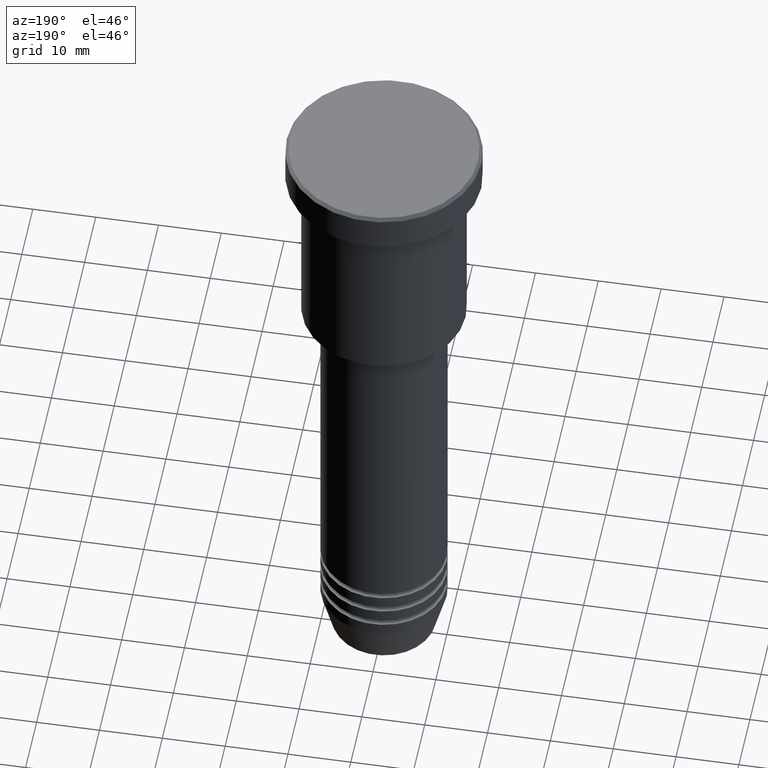
[diagram: clean part render]
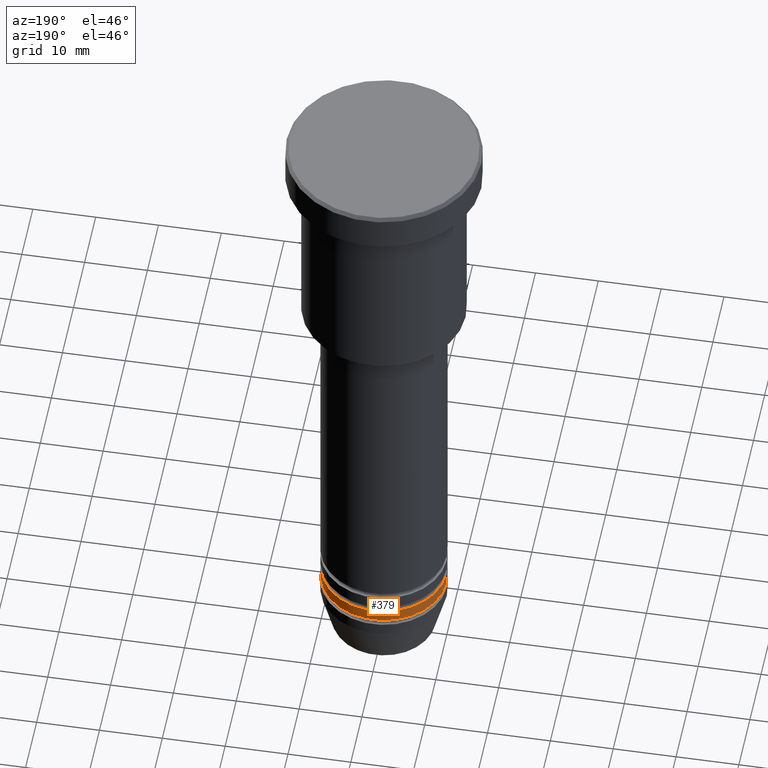
[diagram: same view with one face highlighted and labeled with its STEP entity id]
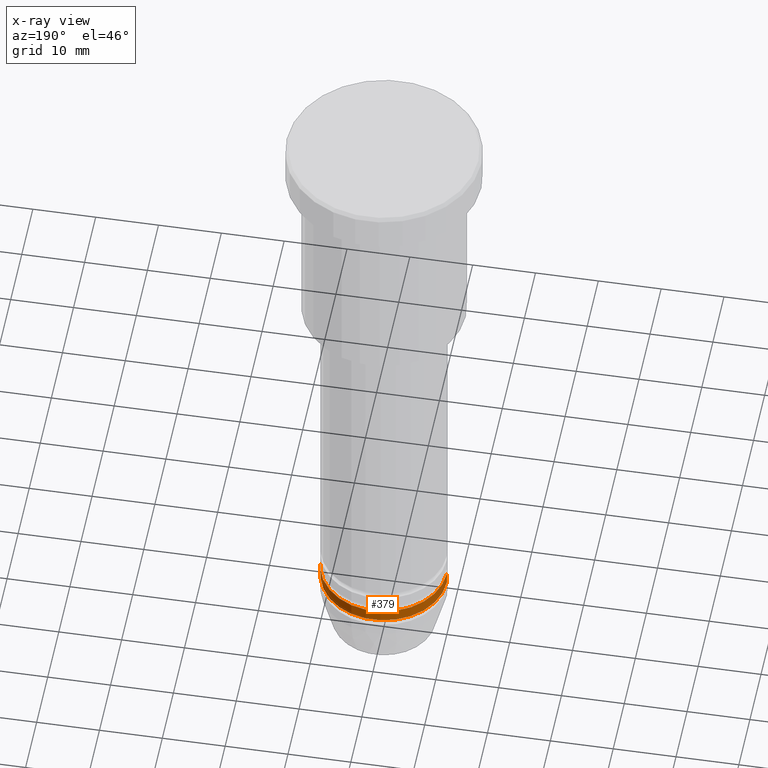
[diagram: x-ray of the same camera — body ghosted, the highlighted face saturated]
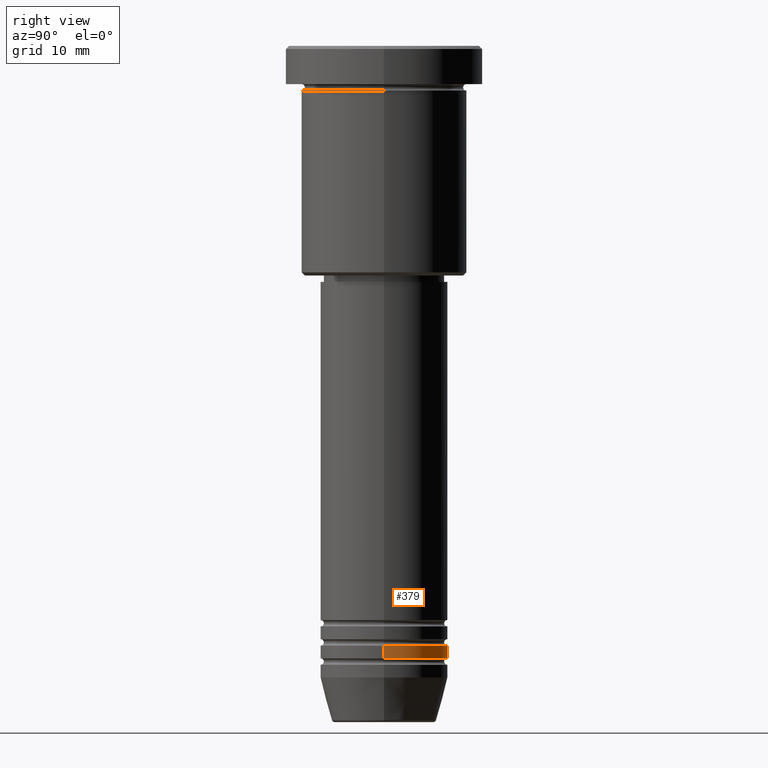
[diagram: same view with one face highlighted and labeled with its STEP entity id]
A machine part, auxiliary view. The second image highlights one B-rep face of the part: STEP entity #379.
The next image is the same camera in x-ray: the body ghosted, the highlighted face saturated — about 0% of this face is hidden behind the body in this view.
A second angle (right view) of the same face is appended — the face is thin or edge-on in the first view.
In plain terms, the highlighted cylindrical surface (partial cylindrical patch) has radius 10 mm, axis along (-0, -0, 1).
Its self-contained STEP definition (entity closure, byte-faithful):
#95 = FACE_OUTER_BOUND ( 'NONE', #617, .T. ) ;
#182 = CARTESIAN_POINT ( 'NONE',  ( 0.000000000000000000, 0.000000000000000000, -93.99999999999998579 ) ) ;
#185 = ORIENTED_EDGE ( 'NONE', *, *, #520, .T. ) ;
#197 = VECTOR ( 'NONE', #485, 1000.000000000000000 ) ;
#201 = DIRECTION ( 'NONE',  ( -0.000000000000000000, -0.000000000000000000, 1.000000000000000000 ) ) ;
#276 = DIRECTION ( 'NONE',  ( 1.000000000000000000, 0.000000000000000000, 0.000000000000000000 ) ) ;
#329 = CARTESIAN_POINT ( 'NONE',  ( 10.00000000000000000, 0.000000000000000000, -95.99999999999997158 ) ) ;
#355 = DIRECTION ( 'NONE',  ( -0.000000000000000000, -0.000000000000000000, 1.000000000000000000 ) ) ;
#377 = VECTOR ( 'NONE', #854, 1000.000000000000000 ) ;
#379 = ADVANCED_FACE ( 'NONE', ( #95 ), #657, .T. ) ;
#402 = CARTESIAN_POINT ( 'NONE',  ( 10.00000000000000000, 0.000000000000000000, -93.99999999999998579 ) ) ;
#460 = CIRCLE ( 'NONE', #1098, 10.00000000000000000 ) ;
#477 = LINE ( 'NONE', #486, #377 ) ;
#485 = DIRECTION ( 'NONE',  ( -0.000000000000000000, -0.000000000000000000, 1.000000000000000000 ) ) ;
#486 = CARTESIAN_POINT ( 'NONE',  ( 10.00000000000000000, 0.000000000000000000, 0.000000000000000000 ) ) ;
#520 = EDGE_CURVE ( 'NONE', #1160, #722, #460, .T. ) ;
#540 = CARTESIAN_POINT ( 'NONE',  ( 0.000000000000000000, 0.000000000000000000, 0.000000000000000000 ) ) ;
#566 = DIRECTION ( 'NONE',  ( 1.000000000000000000, 0.000000000000000000, 0.000000000000000000 ) ) ;
#568 = EDGE_CURVE ( 'NONE', #1160, #1151, #477, .T. ) ;
#595 = CARTESIAN_POINT ( 'NONE',  ( -10.00000000000000000, 1.224646799147353256E-15, -93.99999999999998579 ) ) ;
#617 = EDGE_LOOP ( 'NONE', ( #185, #641, #1002, #822 ) ) ;
#619 = VERTEX_POINT ( 'NONE', #595 ) ;
#641 = ORIENTED_EDGE ( 'NONE', *, *, #912, .T. ) ;
#657 = CYLINDRICAL_SURFACE ( 'NONE', #691, 10.00000000000000000 ) ;
#691 = AXIS2_PLACEMENT_3D ( 'NONE', #540, #1078, #276 ) ;
#722 = VERTEX_POINT ( 'NONE', #798 ) ;
#734 = DIRECTION ( 'NONE',  ( 1.000000000000000000, 0.000000000000000000, 0.000000000000000000 ) ) ;
#768 = EDGE_CURVE ( 'NONE', #1151, #619, #1177, .T. ) ;
#793 = AXIS2_PLACEMENT_3D ( 'NONE', #182, #355, #734 ) ;
#798 = CARTESIAN_POINT ( 'NONE',  ( -10.00000000000000000, 1.224646799147353256E-15, -95.99999999999997158 ) ) ;
#822 = ORIENTED_EDGE ( 'NONE', *, *, #568, .F. ) ;
#854 = DIRECTION ( 'NONE',  ( -0.000000000000000000, -0.000000000000000000, 1.000000000000000000 ) ) ;
#869 = CARTESIAN_POINT ( 'NONE',  ( 0.000000000000000000, 0.000000000000000000, -95.99999999999997158 ) ) ;
#908 = LINE ( 'NONE', #945, #197 ) ;
#912 = EDGE_CURVE ( 'NONE', #722, #619, #908, .T. ) ;
#945 = CARTESIAN_POINT ( 'NONE',  ( -10.00000000000000000, 1.224646799147353256E-15, 0.000000000000000000 ) ) ;
#1002 = ORIENTED_EDGE ( 'NONE', *, *, #768, .F. ) ;
#1078 = DIRECTION ( 'NONE',  ( -0.000000000000000000, -0.000000000000000000, 1.000000000000000000 ) ) ;
#1098 = AXIS2_PLACEMENT_3D ( 'NONE', #869, #201, #566 ) ;
#1151 = VERTEX_POINT ( 'NONE', #402 ) ;
#1160 = VERTEX_POINT ( 'NONE', #329 ) ;
#1177 = CIRCLE ( 'NONE', #793, 10.00000000000000000 ) ;